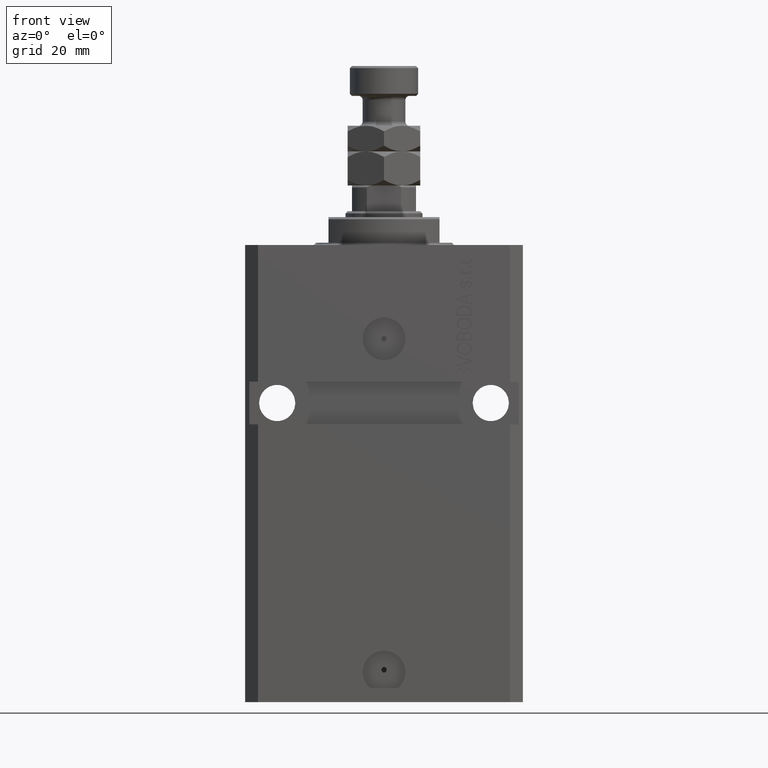
[diagram: clean part render]
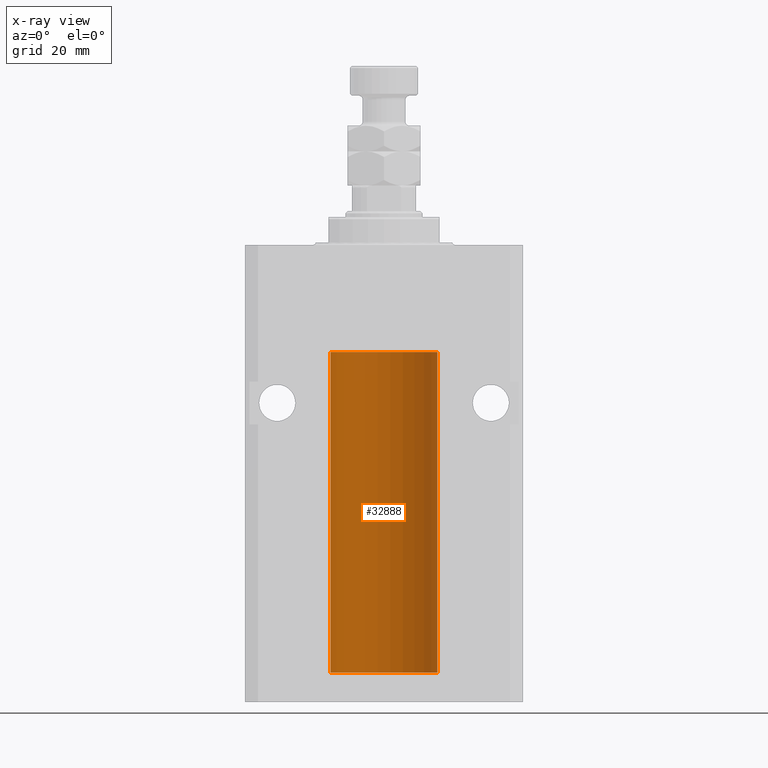
[diagram: x-ray — body ghosted, one internal face saturated and labeled with its STEP entity id]
A machine part, front view, then the same camera in x-ray: the body is ghosted and one INTERNAL B-rep face — a face not visible from any outside direction — is saturated and labeled: STEP entity #32888.
In plain terms, the highlighted cylindrical surface (partial cylindrical patch) has radius 12.5 mm, axis along (0, 0, 1).
Its self-contained STEP definition (entity closure, byte-faithful):
#222 = CARTESIAN_POINT ( 'NONE',  ( -12.50000000000000000, 1.530808498934191521E-15, -100.0999999999999943 ) ) ;
#2162 = DIRECTION ( 'NONE',  ( 0.000000000000000000, 0.000000000000000000, 1.000000000000000000 ) ) ;
#2663 = ORIENTED_EDGE ( 'NONE', *, *, #11206, .F. ) ;
#3201 = DIRECTION ( 'NONE',  ( -0.000000000000000000, -0.000000000000000000, 1.000000000000000000 ) ) ;
#3834 = DIRECTION ( 'NONE',  ( -0.000000000000000000, -0.000000000000000000, 1.000000000000000000 ) ) ;
#4192 = VERTEX_POINT ( 'NONE', #16594 ) ;
#4394 = CARTESIAN_POINT ( 'NONE',  ( 12.50000000000000000, 0.000000000000000000, -100.0999999999999943 ) ) ;
#4870 = LINE ( 'NONE', #19929, #33653 ) ;
#5125 = CARTESIAN_POINT ( 'NONE',  ( -12.50000000000000000, 0.08260426088727994276, -94.37499999999998579 ) ) ;
#5760 = AXIS2_PLACEMENT_3D ( 'NONE', #9323, #2162, #24372 ) ;
#6704 = EDGE_CURVE ( 'NONE', #16762, #6939, #14709, .T. ) ;
#6939 = VERTEX_POINT ( 'NONE', #42331 ) ;
#8140 = DIRECTION ( 'NONE',  ( 1.000000000000000000, 0.000000000000000000, 0.000000000000000000 ) ) ;
#9323 = CARTESIAN_POINT ( 'NONE',  ( 0.000000000000000000, 0.000000000000000000, -25.10000000000000142 ) ) ;
#11206 = EDGE_CURVE ( 'NONE', #16762, #33727, #37651, .T. ) ;
#11316 = CIRCLE ( 'NONE', #5760, 12.50000000000000000 ) ;
#12595 = DIRECTION ( 'NONE',  ( -0.000000000000000000, -0.000000000000000000, 1.000000000000000000 ) ) ;
#12799 = CARTESIAN_POINT ( 'NONE',  ( -12.49625855304194033, 0.3150454781037993479, -94.45402800297488000 ) ) ;
#13364 = VERTEX_POINT ( 'NONE', #41436 ) ;
#14483 = VECTOR ( 'NONE', #3201, 1000.000000000000000 ) ;
#14709 = LINE ( 'NONE', #21863, #27999 ) ;
#14839 = CARTESIAN_POINT ( 'NONE',  ( -12.50000000000000000, 1.530808498934191521E-15, -100.0999999999999943 ) ) ;
#15063 = ORIENTED_EDGE ( 'NONE', *, *, #48589, .F. ) ;
#16001 = CARTESIAN_POINT ( 'NONE',  ( -12.50000000000000000, -1.522152011595579853E-14, -94.37500000000000000 ) ) ;
#16375 = AXIS2_PLACEMENT_3D ( 'NONE', #38981, #42929, #20727 ) ;
#16594 = CARTESIAN_POINT ( 'NONE',  ( -12.50000000000017941, 3.883381774819353300E-13, -95.62500000000359535 ) ) ;
#16741 = CARTESIAN_POINT ( 'NONE',  ( -12.49631005746706514, 0.3253680783018457756, -95.55856740465388555 ) ) ;
#16762 = VERTEX_POINT ( 'NONE', #4394 ) ;
#19929 = CARTESIAN_POINT ( 'NONE',  ( -12.50000000000000000, 1.530808498934191521E-15, -100.0999999999999943 ) ) ;
#20446 = CARTESIAN_POINT ( 'NONE',  ( -12.49422197749723829, 0.3843754434364257122, -94.50047099568094211 ) ) ;
#20727 = DIRECTION ( 'NONE',  ( 1.000000000000000000, 0.000000000000000000, 0.000000000000000000 ) ) ;
#21440 = CARTESIAN_POINT ( 'NONE',  ( -12.50000000000000000, -1.522152011595579853E-14, -94.37500000000000000 ) ) ;
#21863 = CARTESIAN_POINT ( 'NONE',  ( 12.50000000000000000, 0.000000000000000000, -100.0999999999999943 ) ) ;
#23647 = CARTESIAN_POINT ( 'NONE',  ( -12.49999999999999112, 0.1631761135151224562, -95.62499999999980105 ) ) ;
#24372 = DIRECTION ( 'NONE',  ( 1.000000000000000000, 0.000000000000000000, 0.000000000000000000 ) ) ;
#26676 = B_SPLINE_CURVE_WITH_KNOTS ( 'NONE', 3,
 ( #16001, #5125, #46599, #12799, #20446, #31049, #35490, #38212, #27835, #41926, #34512, #16741, #23647, #30805 ),
 .UNSPECIFIED., .F., .F.,
 ( 4, 2, 2, 2, 2, 2, 4 ),
 ( 3.486178718436696769E-18, 0.0002442924852390829216, 0.0004885849704781623738, 0.0009771699409563507684, 0.001221462426195465403, 0.001465754911434580254, 0.001954339881912780900 ),
 .UNSPECIFIED. ) ;
#27835 = CARTESIAN_POINT ( 'NONE',  ( -12.48520330846397997, 0.6088355886774070580, -95.16325431852561678 ) ) ;
#27999 = VECTOR ( 'NONE', #3834, 1000.000000000000000 ) ;
#28740 = ORIENTED_EDGE ( 'NONE', *, *, #42537, .T. ) ;
#30805 = CARTESIAN_POINT ( 'NONE',  ( -12.50000000000017941, 3.883381774819353300E-13, -95.62500000000359535 ) ) ;
#31049 = CARTESIAN_POINT ( 'NONE',  ( -12.48810268015257741, 0.5573155909661239304, -94.67347410093871929 ) ) ;
#32719 = ORIENTED_EDGE ( 'NONE', *, *, #43247, .T. ) ;
#32888 = ADVANCED_FACE ( 'NONE', ( #38244 ), #46636, .F. ) ;
#33653 = VECTOR ( 'NONE', #34983, 1000.000000000000000 ) ;
#33727 = VERTEX_POINT ( 'NONE', #14839 ) ;
#34031 = LINE ( 'NONE', #222, #14483 ) ;
#34512 = CARTESIAN_POINT ( 'NONE',  ( -12.49011732893843529, 0.5003763274120199833, -95.38348111289285214 ) ) ;
#34983 = DIRECTION ( 'NONE',  ( -0.000000000000000000, -0.000000000000000000, 1.000000000000000000 ) ) ;
#35490 = CARTESIAN_POINT ( 'NONE',  ( -12.48436813453758631, 0.6249418250771134886, -94.83668996798924411 ) ) ;
#37142 = EDGE_LOOP ( 'NONE', ( #47775, #2663, #43930, #28740, #15063, #32719 ) ) ;
#37651 = CIRCLE ( 'NONE', #16375, 12.50000000000000000 ) ;
#38212 = CARTESIAN_POINT ( 'NONE',  ( -12.48436376893640620, 0.6250290278979871994, -95.08132082824478459 ) ) ;
#38244 = FACE_OUTER_BOUND ( 'NONE', #37142, .T. ) ;
#38497 = CARTESIAN_POINT ( 'NONE',  ( 0.000000000000000000, 0.000000000000000000, -100.0999999999999943 ) ) ;
#38981 = CARTESIAN_POINT ( 'NONE',  ( 0.000000000000000000, 0.000000000000000000, -100.0999999999999943 ) ) ;
#39484 = EDGE_CURVE ( 'NONE', #33727, #4192, #34031, .T. ) ;
#41436 = CARTESIAN_POINT ( 'NONE',  ( -12.50000000000000000, 1.530808498934191521E-15, -25.10000000000000142 ) ) ;
#41561 = VERTEX_POINT ( 'NONE', #21440 ) ;
#41926 = CARTESIAN_POINT ( 'NONE',  ( -12.48809959379011403, 0.5462151254764922026, -95.31461370481613926 ) ) ;
#42331 = CARTESIAN_POINT ( 'NONE',  ( 12.50000000000000000, 0.000000000000000000, -25.10000000000000142 ) ) ;
#42537 = EDGE_CURVE ( 'NONE', #6939, #13364, #11316, .T. ) ;
#42929 = DIRECTION ( 'NONE',  ( 0.000000000000000000, 0.000000000000000000, 1.000000000000000000 ) ) ;
#43247 = EDGE_CURVE ( 'NONE', #41561, #4192, #26676, .T. ) ;
#43930 = ORIENTED_EDGE ( 'NONE', *, *, #6704, .T. ) ;
#45765 = AXIS2_PLACEMENT_3D ( 'NONE', #38497, #12595, #8140 ) ;
#46599 = CARTESIAN_POINT ( 'NONE',  ( -12.49915784441387068, 0.1636601911727894876, -94.39126818989429069 ) ) ;
#46636 = CYLINDRICAL_SURFACE ( 'NONE', #45765, 12.50000000000000000 ) ;
#47775 = ORIENTED_EDGE ( 'NONE', *, *, #39484, .F. ) ;
#48589 = EDGE_CURVE ( 'NONE', #41561, #13364, #4870, .T. ) ;